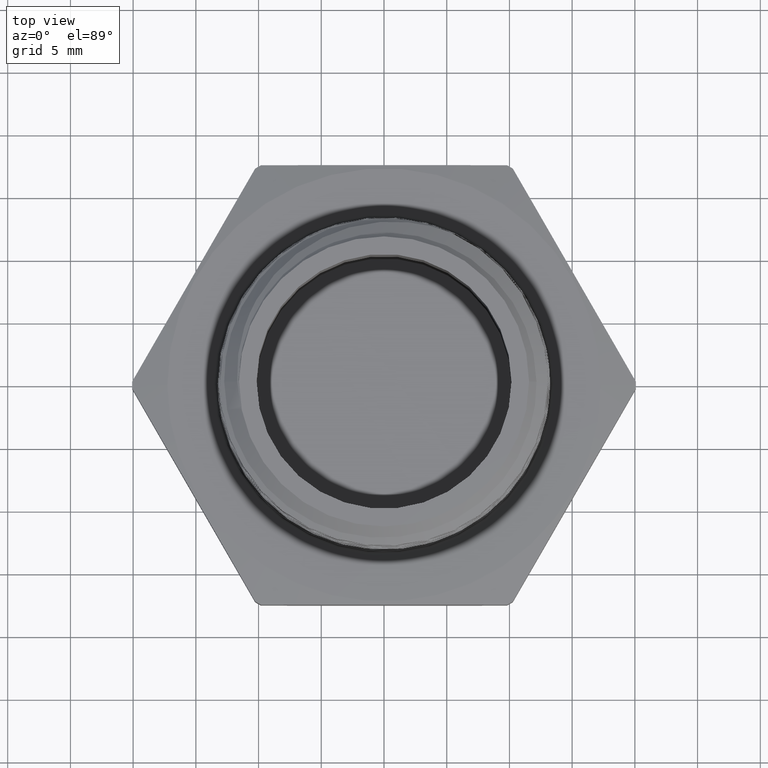
[diagram: clean part render]
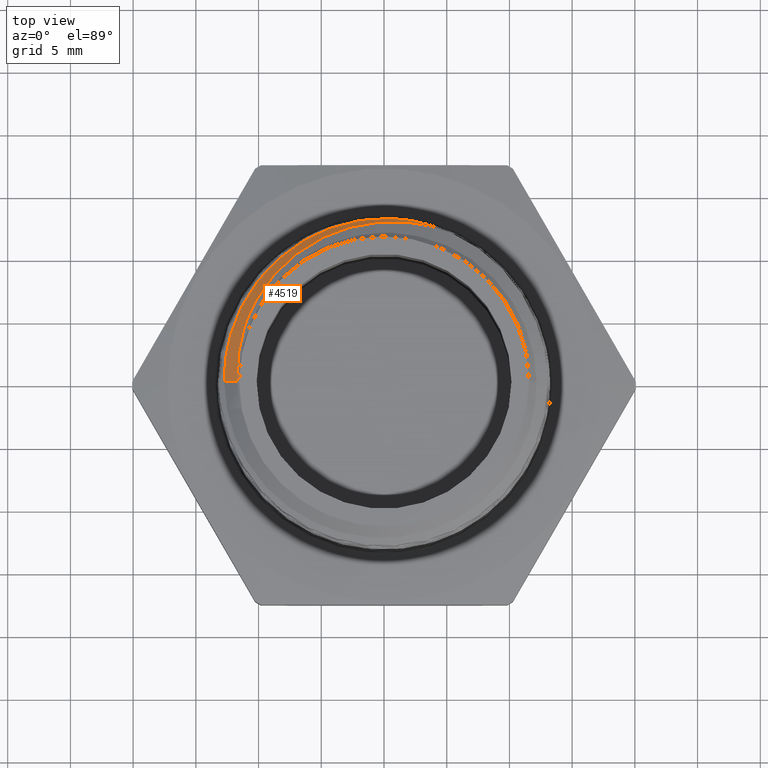
[diagram: same view with one face highlighted and labeled with its STEP entity id]
A machine part, top view. The second image highlights one B-rep face of the part: STEP entity #4519.
In plain terms, the highlighted conical surface has half-angle 45 deg.
Its self-contained STEP definition (entity closure, byte-faithful):
#164 = CARTESIAN_POINT ( 'NONE',  ( -0.1459986273786045300, 0.4899357985451934800, 0.7643599690889396600 ) ) ;
#980 = CARTESIAN_POINT ( 'NONE',  ( -0.4605505608381587100, 3.562229058007021700E-013, 0.8147494391618412800 ) ) ;
#981 = CARTESIAN_POINT ( 'NONE',  ( -0.5015766414513303000, -1.792775245842172800E-016, 0.7737233585486705800 ) ) ;
#1059 = DIRECTION ( 'NONE',  ( -1.000000000000000000, 0.0000000000000000000, 0.0000000000000000000 ) ) ;
#1060 = CARTESIAN_POINT ( 'NONE',  ( 0.0000000000000000000, 0.0000000000000000000, 0.7619092775716851400 ) ) ;
#1061 = DIRECTION ( 'NONE',  ( -0.0000000000000000000, -0.0000000000000000000, -1.000000000000000000 ) ) ;
#1281 = B_SPLINE_CURVE_WITH_KNOTS ( 'NONE', 3,
 ( #3336, #3338, #3385, #3386, #3387, #3388, #3389, #3390, #3391, #3392, #3393, #3394, #3395, #3396, #3397, #3398, #3399, #3400, #3401, #3402, #3403, #3404, #3405, #3406, #3407, #3408, #3409, #3410, #3411, #3412, #3413, #3414 ),
 .UNSPECIFIED., .F., .F.,
 ( 4, 2, 2, 2, 2, 2, 2, 2, 2, 2, 2, 2, 2, 2, 2, 4 ),
 ( 0.001953970434791834700, 0.003496954440305460100, 0.005039938445819086400, 0.006582922451332712300, 0.008125906456846339000, 0.009668890462359965700, 0.01044038246511677600, 0.01121187446787359100, 0.01429784247890085800, 0.01584082648441449000, 0.01738381048992812500, 0.01892679449544175700, 0.02046977850095538900, 0.02201276250646902800, 0.02355574651198266000, 0.02664171452300992400 ),
 .UNSPECIFIED. ) ;
#1282 = B_SPLINE_CURVE_WITH_KNOTS ( 'NONE', 3,
 ( #3337, #3384, #3416, #3417, #3418, #164, #3136, #3137, #3138, #3139, #3140, #3141, #3142, #3143, #3144, #3145, #3146, #3147, #3148, #3149, #3150, #3151, #3152, #3153 ),
 .UNSPECIFIED., .F., .F.,
 ( 4, 2, 2, 2, 2, 2, 2, 2, 2, 2, 2, 4 ),
 ( 0.0000000000000000000, 0.002601869069283812800, 0.003902803603925717900, 0.005203738138567622900, 0.007805607207851434000, 0.01040747627713524400, 0.01170841081177715300, 0.01300934534641905900, 0.01561121441570287100, 0.01691214895034477700, 0.01821308348498668800, 0.02081495255427050200 ),
 .UNSPECIFIED. ) ;
#2851 = CARTESIAN_POINT ( 'NONE',  ( 0.2107820722105258900, 0.4681249319467021800, 0.7619092775716851400 ) ) ;
#2858 = CARTESIAN_POINT ( 'NONE',  ( 0.02294610051365013000, 0.5128776758123569900, 0.7619092775716852500 ) ) ;
#3136 = CARTESIAN_POINT ( 'NONE',  ( -0.1621589877222785700, 0.4845696001907475200, 0.7645995870838877600 ) ) ;
#3137 = CARTESIAN_POINT ( 'NONE',  ( -0.2096499341888058100, 0.4661294197955863100, 0.7653230995402307000 ) ) ;
#3138 = CARTESIAN_POINT ( 'NONE',  ( -0.2400199751706481000, 0.4507155215995467500, 0.7658205923290045700 ) ) ;
#3139 = CARTESIAN_POINT ( 'NONE',  ( -0.2979382516568220300, 0.4134908780912944800, 0.7668148920428921000 ) ) ;
#3140 = CARTESIAN_POINT ( 'NONE',  ( -0.3245464826805400900, 0.3922938050233129000, 0.7672927278046750600 ) ) ;
#3141 = CARTESIAN_POINT ( 'NONE',  ( -0.3610441177641631200, 0.3567446886941585400, 0.7680217106809781300 ) ) ;
#3142 = CARTESIAN_POINT ( 'NONE',  ( -0.3726348204412931500, 0.3442627931261099100, 0.7682692048882119300 ) ) ;
#3143 = CARTESIAN_POINT ( 'NONE',  ( -0.3946385160955511700, 0.3180044696984222800, 0.7687695979611289800 ) ) ;
#3144 = CARTESIAN_POINT ( 'NONE',  ( -0.4050443499134792100, 0.3042166299739152400, 0.7690218574774673200 ) ) ;
#3145 = CARTESIAN_POINT ( 'NONE',  ( -0.4337804099432378500, 0.2618501132405386400, 0.7697642219972996600 ) ) ;
#3146 = CARTESIAN_POINT ( 'NONE',  ( -0.4499228142595170200, 0.2319831205409483000, 0.7702427074155551200 ) ) ;
#3147 = CARTESIAN_POINT ( 'NONE',  ( -0.4695777749067319700, 0.1847299318420083700, 0.7709811773777302000 ) ) ;
#3148 = CARTESIAN_POINT ( 'NONE',  ( -0.4753842117808138600, 0.1684838145765996700, 0.7712342321945676600 ) ) ;
#3149 = CARTESIAN_POINT ( 'NONE',  ( -0.4852636504088748100, 0.1356016547320781900, 0.7717387099242470900 ) ) ;
#3150 = CARTESIAN_POINT ( 'NONE',  ( -0.4893441309586047900, 0.1189800194028607400, 0.7719896574025764100 ) ) ;
#3151 = CARTESIAN_POINT ( 'NONE',  ( -0.4990362724218948600, 0.06857938941410453300, 0.7727367267454291500 ) ) ;
#3152 = CARTESIAN_POINT ( 'NONE',  ( -0.5020727627174049700, 0.03402242190718570600, 0.7732272372825955700 ) ) ;
#3153 = CARTESIAN_POINT ( 'NONE',  ( -0.5015766414513303000, -1.792775245842172800E-016, 0.7737233585486705800 ) ) ;
#3331 = CARTESIAN_POINT ( 'NONE',  ( -0.5133907224283157400, 0.0000000000000000000, 0.7619092775716851400 ) ) ;
#3335 = DIRECTION ( 'NONE',  ( -0.7071067811865516800, 0.0000000000000000000, -0.7071067811865433500 ) ) ;
#3336 = CARTESIAN_POINT ( 'NONE',  ( -0.4605505608381587100, 3.562229058007021700E-013, 0.8147494391618412800 ) ) ;
#3337 = CARTESIAN_POINT ( 'NONE',  ( 0.02294610051365013000, 0.5128776758123569900, 0.7619092775716852500 ) ) ;
#3338 = CARTESIAN_POINT ( 'NONE',  ( -0.4617121011580919100, 0.02018710517726835700, 0.8135878988418925300 ) ) ;
#3384 = CARTESIAN_POINT ( 'NONE',  ( -0.01147518130343701600, 0.5139315298656761400, 0.7623949427073782900 ) ) ;
#3385 = CARTESIAN_POINT ( 'NONE',  ( -0.4615669156583939200, 0.04051832872051373100, 0.8124062268744437500 ) ) ;
#3386 = CARTESIAN_POINT ( 'NONE',  ( -0.4585494180488270400, 0.08122257514318152700, 0.8100585915768945300 ) ) ;
#3387 = CARTESIAN_POINT ( 'NONE',  ( -0.4557052795755863200, 0.1012897184907904400, 0.8089102390434225200 ) ) ;
#3388 = CARTESIAN_POINT ( 'NONE',  ( -0.4474396604829540800, 0.1408728150308458900, 0.8066424491081545200 ) ) ;
#3389 = CARTESIAN_POINT ( 'NONE',  ( -0.4420178202947768800, 0.1603886855982107100, 0.8055229167274551300 ) ) ;
#3390 = CARTESIAN_POINT ( 'NONE',  ( -0.4286150209423393300, 0.1988686209085750700, 0.8032345505107666400 ) ) ;
#3391 = CARTESIAN_POINT ( 'NONE',  ( -0.4206855153328435400, 0.2176489278503051200, 0.8020753829946748500 ) ) ;
#3392 = CARTESIAN_POINT ( 'NONE',  ( -0.4026385674748380600, 0.2537425948216179800, 0.7998031020294804600 ) ) ;
#3393 = CARTESIAN_POINT ( 'NONE',  ( -0.3924908713593703300, 0.2711456066400027600, 0.7986844751095454300 ) ) ;
#3394 = CARTESIAN_POINT ( 'NONE',  ( -0.3755888202031246700, 0.2962869435376658300, 0.7970205331723259100 ) ) ;
#3395 = CARTESIAN_POINT ( 'NONE',  ( -0.3696742538042156500, 0.3045065649207225300, 0.7964677932062360600 ) ) ;
#3396 = CARTESIAN_POINT ( 'NONE',  ( -0.3572794358833923400, 0.3206210634346664000, 0.7953589183237223000 ) ) ;
#3397 = CARTESIAN_POINT ( 'NONE',  ( -0.3507810590892910800, 0.3285339588747480100, 0.7948013725148325200 ) ) ;
#3398 = CARTESIAN_POINT ( 'NONE',  ( -0.3173143353595076500, 0.3667740232716543700, 0.7920155588909473200 ) ) ;
#3399 = CARTESIAN_POINT ( 'NONE',  ( -0.2872094637553370100, 0.3935583438304752200, 0.7897738522834050200 ) ) ;
#3400 = CARTESIAN_POINT ( 'NONE',  ( -0.2370114226947520900, 0.4279819648362229200, 0.7864927524834669500 ) ) ;
#3401 = CARTESIAN_POINT ( 'NONE',  ( -0.2193905324477148600, 0.4384900710517029600, 0.7854043591029420400 ) ) ;
#3402 = CARTESIAN_POINT ( 'NONE',  ( -0.1834355713579123600, 0.4570362433639435000, 0.7832403212831302600 ) ) ;
#3403 = CARTESIAN_POINT ( 'NONE',  ( -0.1649933451158200900, 0.4651698564185792200, 0.7821463008020270700 ) ) ;
#3404 = CARTESIAN_POINT ( 'NONE',  ( -0.1271774680257661300, 0.4791572462811458100, 0.7799611797801119200 ) ) ;
#3405 = CARTESIAN_POINT ( 'NONE',  ( -0.1078023522562640700, 0.4850079543928588800, 0.7788737058837119600 ) ) ;
#3406 = CARTESIAN_POINT ( 'NONE',  ( -0.06808341763850180000, 0.4943394760689290800, 0.7767101165575621700 ) ) ;
#3407 = CARTESIAN_POINT ( 'NONE',  ( -0.04804259369820886000, 0.4977425292250783900, 0.7756503571008969100 ) ) ;
#3408 = CARTESIAN_POINT ( 'NONE',  ( -0.007927008137598258500, 0.5021001152401886000, 0.7735416790696970600 ) ) ;
#3409 = CARTESIAN_POINT ( 'NONE',  ( 0.01219767435484090900, 0.5030761752995954700, 0.7724801157172496200 ) ) ;
#3410 = CARTESIAN_POINT ( 'NONE',  ( 0.05258017144422105800, 0.5026260011057668300, 0.7703336783179893800 ) ) ;
#3411 = CARTESIAN_POINT ( 'NONE',  ( 0.07293868554161990500, 0.5011765456899552900, 0.7692523669077507800 ) ) ;
#3412 = CARTESIAN_POINT ( 'NONE',  ( 0.1335119577312808600, 0.4931104662851844600, 0.7660571547313734800 ) ) ;
#3413 = CARTESIAN_POINT ( 'NONE',  ( 0.1727197565281898000, 0.4829358085432427000, 0.7640314685779305800 ) ) ;
#3414 = CARTESIAN_POINT ( 'NONE',  ( 0.2107820722105258900, 0.4681249319467021800, 0.7619092775716851400 ) ) ;
#3416 = CARTESIAN_POINT ( 'NONE',  ( -0.04554757366900904400, 0.5115273291047590700, 0.7628902523253164900 ) ) ;
#3417 = CARTESIAN_POINT ( 'NONE',  ( -0.09614468418400459700, 0.5028487332684814500, 0.7636283389198493800 ) ) ;
#3418 = CARTESIAN_POINT ( 'NONE',  ( -0.1130055756796455700, 0.4990778434269467800, 0.7638745575069392200 ) ) ;
#3527 = EDGE_CURVE ( 'NONE', #4308, #4301, #4060, .T. ) ;
#3568 = EDGE_CURVE ( 'NONE', #4335, #4336, #4089, .T. ) ;
#3570 = EDGE_CURVE ( 'NONE', #4335, #4301, #1281, .T. ) ;
#3571 = EDGE_CURVE ( 'NONE', #4308, #4336, #1282, .T. ) ;
#3630 = AXIS2_PLACEMENT_3D ( 'NONE', #3941, #3942, #3943 ) ;
#3675 = AXIS2_PLACEMENT_3D ( 'NONE', #1060, #1061, #1059 ) ;
#3941 = CARTESIAN_POINT ( 'NONE',  ( 0.0000000000000000000, 0.0000000000000000000, 0.7619092775716851400 ) ) ;
#3942 = DIRECTION ( 'NONE',  ( -0.0000000000000000000, -0.0000000000000000000, -1.000000000000000000 ) ) ;
#3943 = DIRECTION ( 'NONE',  ( -1.000000000000000000, 0.0000000000000000000, 0.0000000000000000000 ) ) ;
#4060 = CIRCLE ( 'NONE', #3630, 0.5133907224283157400 ) ;
#4087 = VECTOR ( 'NONE', #3335, 39.37007874015748100 ) ;
#4089 = LINE ( 'NONE', #3331, #4087 ) ;
#4179 = FACE_OUTER_BOUND ( 'NONE', #4249, .T. ) ;
#4184 = CONICAL_SURFACE ( 'NONE', #3675, 0.5133907224283157400, 0.7853981633974541600 ) ;
#4220 = ORIENTED_EDGE ( 'NONE', *, *, #3568, .F. ) ;
#4221 = ORIENTED_EDGE ( 'NONE', *, *, #3570, .T. ) ;
#4222 = ORIENTED_EDGE ( 'NONE', *, *, #3527, .F. ) ;
#4223 = ORIENTED_EDGE ( 'NONE', *, *, #3571, .T. ) ;
#4249 = EDGE_LOOP ( 'NONE', ( #4220, #4221, #4222, #4223 ) ) ;
#4301 = VERTEX_POINT ( 'NONE', #2851 ) ;
#4308 = VERTEX_POINT ( 'NONE', #2858 ) ;
#4335 = VERTEX_POINT ( 'NONE', #980 ) ;
#4336 = VERTEX_POINT ( 'NONE', #981 ) ;
#4519 = ADVANCED_FACE ( 'NONE', ( #4179 ), #4184, .T. ) ;